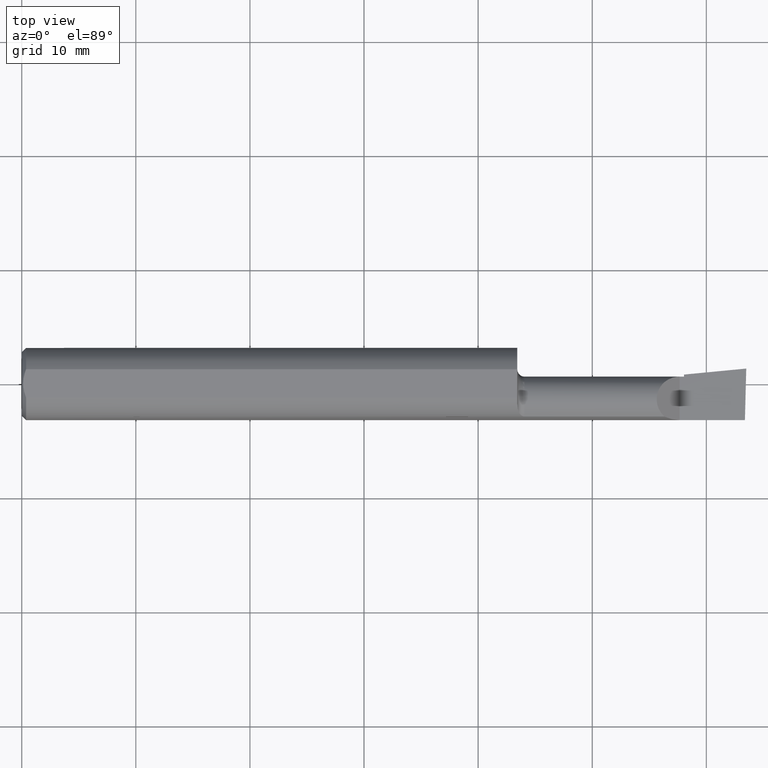
[diagram: clean part render]
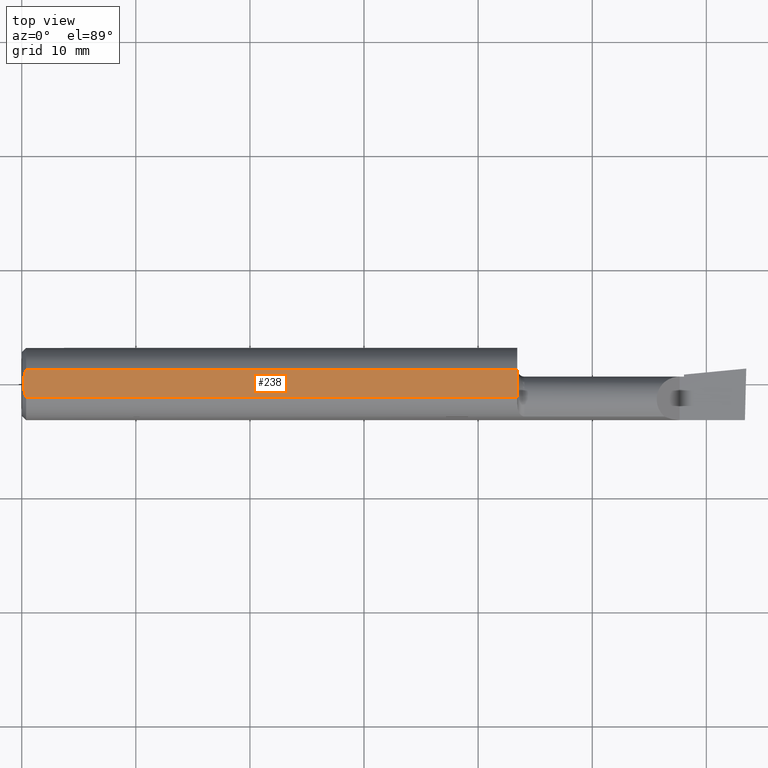
[diagram: same view with one face highlighted and labeled with its STEP entity id]
A machine part, top view. The second image highlights one B-rep face of the part: STEP entity #238.
In plain terms, the highlighted planar face has unit normal (0, -0, -1).
Its self-contained STEP definition (entity closure, byte-faithful):
#2 = CARTESIAN_POINT ( 'NONE',  ( 1.709999999999999964, 0.04895916665957456004, 0.1148500000000000076 ) ) ;
#6 = DIRECTION ( 'NONE',  ( 1.000000000000000000, 0.0000000000000000000, 0.0000000000000000000 ) ) ;
#23 = VERTEX_POINT ( 'NONE', #171 ) ;
#25 = LINE ( 'NONE', #136, #575 ) ;
#28 = CARTESIAN_POINT ( 'NONE',  ( 0.01499999999999999077, -0.04895916665957456004, 0.1148500000000000215 ) ) ;
#30 = CARTESIAN_POINT ( 'NONE',  ( 0.01499999999999999424, 0.04895916665957457392, 0.1148500000000000076 ) ) ;
#36 = B_SPLINE_CURVE_WITH_KNOTS ( 'NONE', 3,
 ( #28, #115, #436, #346, #306, #437 ),
 .UNSPECIFIED., .F., .F.,
 ( 4, 2, 4 ),
 ( 0.001029394377391489035, 0.001663875367397493060, 0.002298356357403497086 ),
 .UNSPECIFIED. ) ;
#43 = VERTEX_POINT ( 'NONE', #2 ) ;
#108 = PLANE ( 'NONE',  #156 ) ;
#113 = CARTESIAN_POINT ( 'NONE',  ( 0.01193974418109659645, 0.04115525648180389656, 0.1148500000000000076 ) ) ;
#115 = CARTESIAN_POINT ( 'NONE',  ( 0.01195732443765553168, -0.04120008761723500251, 0.1148500000000000215 ) ) ;
#136 = CARTESIAN_POINT ( 'NONE',  ( 1.709999999999999964, 0.1748500000000000054, 0.1148500000000000076 ) ) ;
#156 = AXIS2_PLACEMENT_3D ( 'NONE', #160, #570, #392 ) ;
#160 = CARTESIAN_POINT ( 'NONE',  ( 2.500000000000000000, 0.1748500000000000054, 0.1148500000000000076 ) ) ;
#170 = VERTEX_POINT ( 'NONE', #501 ) ;
#171 = CARTESIAN_POINT ( 'NONE',  ( 0.01499999999999999077, -0.04895916665957456004, 0.1148500000000000215 ) ) ;
#174 = EDGE_CURVE ( 'NONE', #23, #552, #36, .T. ) ;
#175 = ORIENTED_EDGE ( 'NONE', *, *, #174, .F. ) ;
#181 = DIRECTION ( 'NONE',  ( -1.000000000000000000, -0.0000000000000000000, -0.0000000000000000000 ) ) ;
#200 = EDGE_CURVE ( 'NONE', #552, #170, #426, .T. ) ;
#231 = CARTESIAN_POINT ( 'NONE',  ( 0.005000000000000237761, 1.454187638523587873E-17, 0.1148500000000000076 ) ) ;
#238 = ADVANCED_FACE ( 'NONE', ( #349 ), #108, .F. ) ;
#250 = CARTESIAN_POINT ( 'NONE',  ( 0.009410502401328815075, 0.03310661131402416191, 0.1148500000000000076 ) ) ;
#258 = ORIENTED_EDGE ( 'NONE', *, *, #200, .F. ) ;
#306 = CARTESIAN_POINT ( 'NONE',  ( 0.005000000000000194393, -0.008410771716546815852, 0.1148500000000000076 ) ) ;
#315 = VECTOR ( 'NONE', #181, 39.37007874015748143 ) ;
#346 = CARTESIAN_POINT ( 'NONE',  ( 0.005932194444709924276, -0.01671525318617307979, 0.1148500000000000215 ) ) ;
#348 = LINE ( 'NONE', #542, #315 ) ;
#349 = FACE_OUTER_BOUND ( 'NONE', #478, .T. ) ;
#355 = ORIENTED_EDGE ( 'NONE', *, *, #466, .F. ) ;
#374 = ORIENTED_EDGE ( 'NONE', *, *, #482, .F. ) ;
#380 = EDGE_CURVE ( 'NONE', #43, #489, #25, .T. ) ;
#385 = CARTESIAN_POINT ( 'NONE',  ( 0.005947935873631425563, 0.01679708999422678192, 0.1148499999999999938 ) ) ;
#388 = VECTOR ( 'NONE', #6, 39.37007874015748143 ) ;
#392 = DIRECTION ( 'NONE',  ( 0.0000000000000000000, 1.000000000000000000, -4.882484975808304553E-17 ) ) ;
#426 = B_SPLINE_CURVE_WITH_KNOTS ( 'NONE', 3,
 ( #524, #432, #385, #250, #113, #30 ),
 .UNSPECIFIED., .F., .F.,
 ( 4, 2, 4 ),
 ( 0.002298356357403497086, 0.002932796277434359007, 0.003567236197465221362 ),
 .UNSPECIFIED. ) ;
#432 = CARTESIAN_POINT ( 'NONE',  ( 0.005000000000000195260, 0.008410227287019747533, 0.1148500000000000215 ) ) ;
#436 = CARTESIAN_POINT ( 'NONE',  ( 0.009415874254822530556, -0.03313958207962815899, 0.1148500000000000354 ) ) ;
#437 = CARTESIAN_POINT ( 'NONE',  ( 0.005000000000000237761, 1.454187638523587873E-17, 0.1148500000000000076 ) ) ;
#452 = CARTESIAN_POINT ( 'NONE',  ( 0.0000000000000000000, 0.04895916665957457392, 0.1148500000000000076 ) ) ;
#466 = EDGE_CURVE ( 'NONE', #489, #23, #348, .T. ) ;
#478 = EDGE_LOOP ( 'NONE', ( #568, #374, #258, #175, #355 ) ) ;
#482 = EDGE_CURVE ( 'NONE', #170, #43, #539, .T. ) ;
#489 = VERTEX_POINT ( 'NONE', #556 ) ;
#501 = CARTESIAN_POINT ( 'NONE',  ( 0.01499999999999999424, 0.04895916665957457392, 0.1148500000000000076 ) ) ;
#524 = CARTESIAN_POINT ( 'NONE',  ( 0.005000000000000237761, 1.454187638523587873E-17, 0.1148500000000000076 ) ) ;
#539 = LINE ( 'NONE', #452, #388 ) ;
#542 = CARTESIAN_POINT ( 'NONE',  ( 0.0000000000000000000, -0.04895916665957456004, 0.1148500000000000076 ) ) ;
#551 = DIRECTION ( 'NONE',  ( -3.414809992080329023E-18, -1.000000000000000000, 4.882484975808304553E-17 ) ) ;
#552 = VERTEX_POINT ( 'NONE', #231 ) ;
#556 = CARTESIAN_POINT ( 'NONE',  ( 1.709999999999999964, -0.04895916665957457392, 0.1148500000000000215 ) ) ;
#568 = ORIENTED_EDGE ( 'NONE', *, *, #380, .F. ) ;
#570 = DIRECTION ( 'NONE',  ( 0.0000000000000000000, -4.882484975808304553E-17, -1.000000000000000000 ) ) ;
#575 = VECTOR ( 'NONE', #551, 39.37007874015748143 ) ;